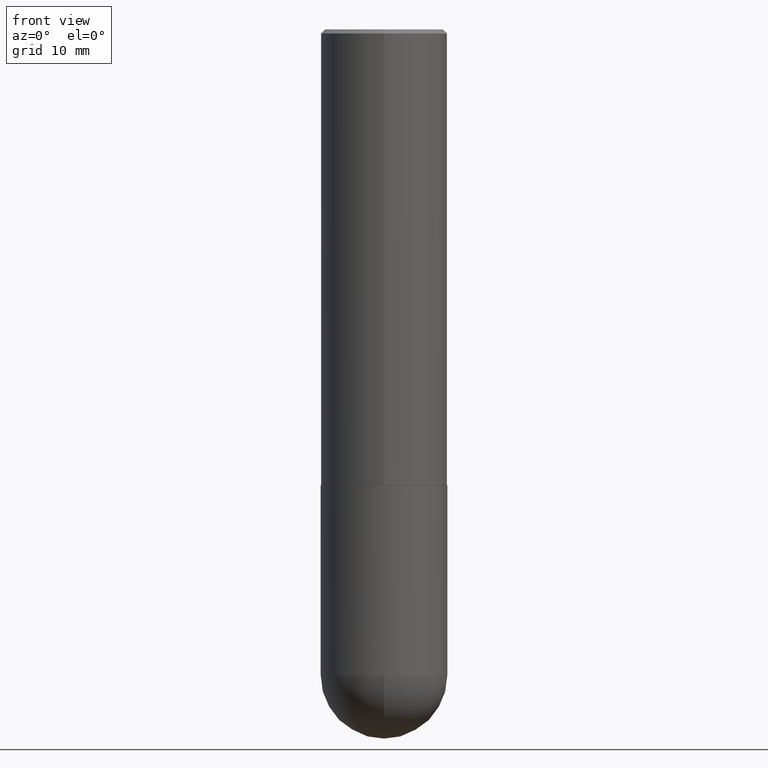
[diagram: clean part render]
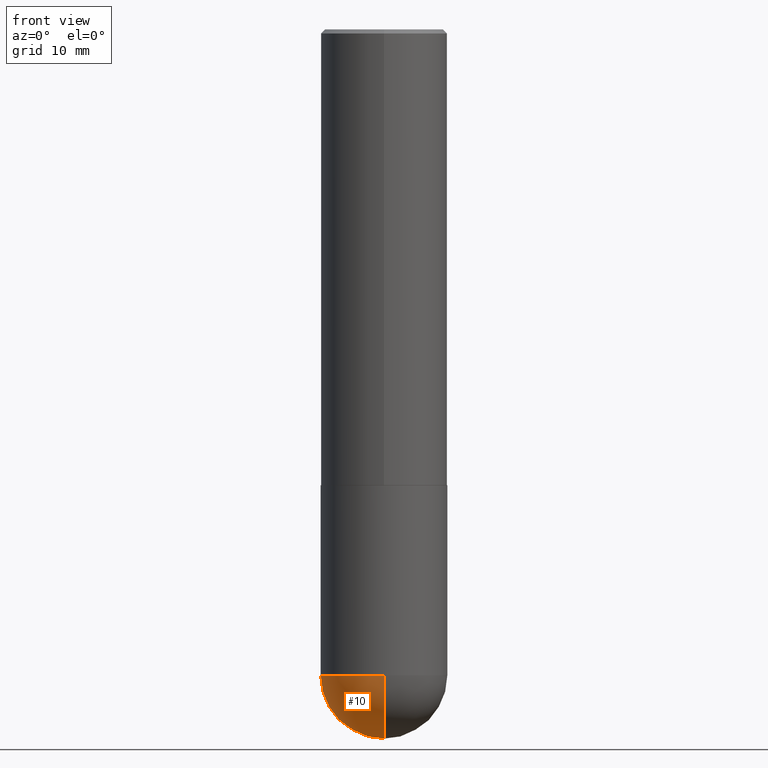
[diagram: same view with one face highlighted and labeled with its STEP entity id]
A machine part, front view. The second image highlights one B-rep face of the part: STEP entity #10.
In plain terms, the highlighted spherical surface has radius 7.9375 mm.
Its self-contained STEP definition (entity closure, byte-faithful):
#4 = AXIS2_PLACEMENT_3D ( 'NONE', #106, #135, #43 ) ;
#10 = ADVANCED_FACE ( 'NONE', ( #338 ), #306, .T. ) ;
#19 = DIRECTION ( 'NONE',  ( -2.445468806185136597E-29, 3.491481338843145583E-15, 1.000000000000000000 ) ) ;
#21 = AXIS2_PLACEMENT_3D ( 'NONE', #112, #89, #364 ) ;
#43 = DIRECTION ( 'NONE',  ( 1.000000000000000000, -6.982962677686269077E-15, 0.000000000000000000 ) ) ;
#44 = ORIENTED_EDGE ( 'NONE', *, *, #173, .F. ) ;
#46 = DIRECTION ( 'NONE',  ( -1.000000000000000000, 7.105427357601001070E-15, -4.926315508542082329E-29 ) ) ;
#50 = CARTESIAN_POINT ( 'NONE',  ( 2.182175836777035261E-15, 0.3124999999999887867, -3.187500000000000888 ) ) ;
#60 = EDGE_LOOP ( 'NONE', ( #194, #259, #108, #44 ) ) ;
#89 = DIRECTION ( 'NONE',  ( -1.000000000000000000, 6.982962677686265922E-15, -4.883557194083112901E-29 ) ) ;
#106 = CARTESIAN_POINT ( 'NONE',  ( 7.794931819715121781E-29, -1.112909676756252622E-14, -3.187500000000000000 ) ) ;
#108 = ORIENTED_EDGE ( 'NONE', *, *, #254, .F. ) ;
#112 = CARTESIAN_POINT ( 'NONE',  ( 7.463812041801236655E-29, -1.160327913570257494E-14, -3.187500000000000000 ) ) ;
#131 = VERTEX_POINT ( 'NONE', #256 ) ;
#132 = CARTESIAN_POINT ( 'NONE',  ( -0.3125000000000000000, -7.272018840729490833E-15, -3.187500000000000000 ) ) ;
#133 = CARTESIAN_POINT ( 'NONE',  ( 7.463812041801236655E-29, -1.160327913570257494E-14, -3.187500000000000000 ) ) ;
#135 = DIRECTION ( 'NONE',  ( -2.445468806185136597E-29, 3.491481338843145583E-15, 1.000000000000000000 ) ) ;
#155 = CIRCLE ( 'NONE', #301, 0.3125000000000002776 ) ;
#161 = CIRCLE ( 'NONE', #4, 0.3125000000000000000 ) ;
#167 = CARTESIAN_POINT ( 'NONE',  ( 7.794931819715121781E-29, -1.112909676756252622E-14, -3.187500000000000000 ) ) ;
#173 = EDGE_CURVE ( 'NONE', #358, #289, #161, .T. ) ;
#194 = ORIENTED_EDGE ( 'NONE', *, *, #210, .F. ) ;
#199 = DIRECTION ( 'NONE',  ( 1.000000000000000000, -6.982962677686265922E-15, 4.883557194083112340E-29 ) ) ;
#210 = EDGE_CURVE ( 'NONE', #244, #358, #270, .T. ) ;
#225 = DIRECTION ( 'NONE',  ( 1.000000000000000000, -6.982962677686269077E-15, 0.000000000000000000 ) ) ;
#244 = VERTEX_POINT ( 'NONE', #401 ) ;
#254 = EDGE_CURVE ( 'NONE', #289, #131, #362, .T. ) ;
#256 = CARTESIAN_POINT ( 'NONE',  ( -2.220446049250237350E-15, -0.3125000000000114908, -3.187499999999998668 ) ) ;
#259 = ORIENTED_EDGE ( 'NONE', *, *, #285, .T. ) ;
#270 = CIRCLE ( 'NONE', #273, 0.3125000000000002776 ) ;
#273 = AXIS2_PLACEMENT_3D ( 'NONE', #133, #199, #363 ) ;
#285 = EDGE_CURVE ( 'NONE', #244, #131, #155, .T. ) ;
#289 = VERTEX_POINT ( 'NONE', #132 ) ;
#301 = AXIS2_PLACEMENT_3D ( 'NONE', #343, #46, #327 ) ;
#306 = SPHERICAL_SURFACE ( 'NONE', #21, 0.3125000000000002776 ) ;
#327 = DIRECTION ( 'NONE',  ( -7.105427357601000281E-15, -1.000000000000000000, 0.000000000000000000 ) ) ;
#338 = FACE_OUTER_BOUND ( 'NONE', #60, .T. ) ;
#343 = CARTESIAN_POINT ( 'NONE',  ( 7.463812041801236655E-29, -1.160327913570257494E-14, -3.187500000000000000 ) ) ;
#358 = VERTEX_POINT ( 'NONE', #50 ) ;
#362 = CIRCLE ( 'NONE', #369, 0.3125000000000000000 ) ;
#363 = DIRECTION ( 'NONE',  ( 6.982962677686265922E-15, 1.000000000000000000, 0.000000000000000000 ) ) ;
#364 = DIRECTION ( 'NONE',  ( 6.982962677686265922E-15, 1.000000000000000000, -3.496765431890253764E-15 ) ) ;
#369 = AXIS2_PLACEMENT_3D ( 'NONE', #167, #19, #225 ) ;
#401 = CARTESIAN_POINT ( 'NONE',  ( 8.241383017002520278E-29, -1.267523194785438148E-14, -3.500000000000000444 ) ) ;